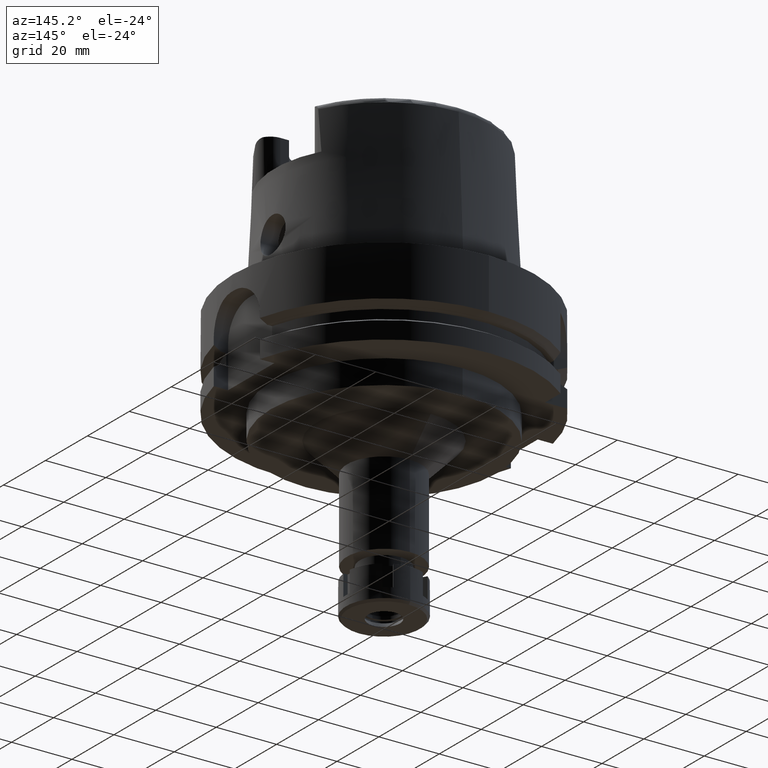
[diagram: clean part render]
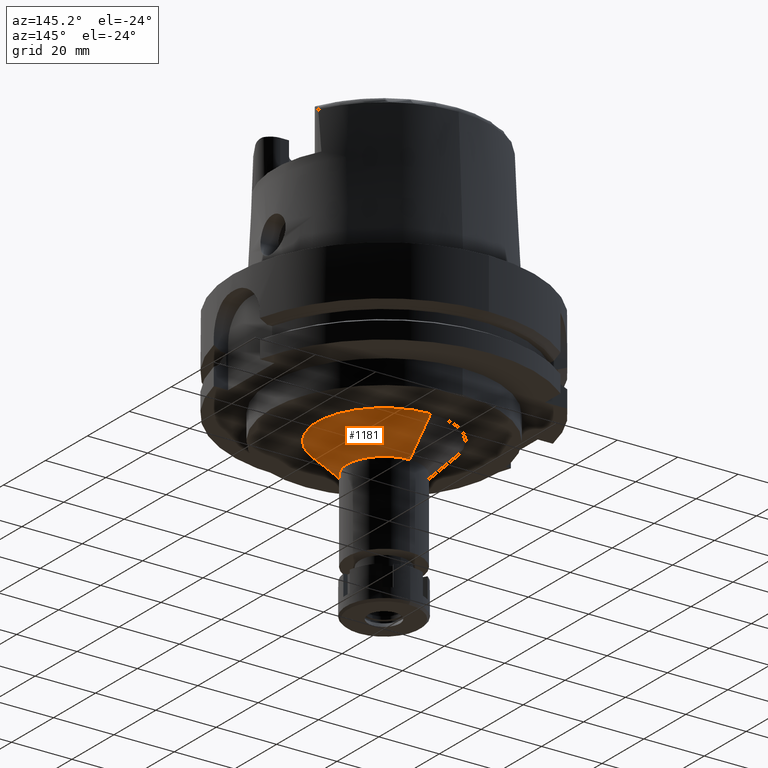
[diagram: same view with one face highlighted and labeled with its STEP entity id]
A machine part, auxiliary view. The second image highlights one B-rep face of the part: STEP entity #1181.
In plain terms, the highlighted conical surface has half-angle 45 deg.
Its self-contained STEP definition (entity closure, byte-faithful):
#38 = CONICAL_SURFACE ( 'NONE', #4300, 17.25000000000000000, 0.7853981633972997312 ) ;
#956 = EDGE_CURVE ( 'NONE', #4631, #5289, #5639, .T. ) ;
#1181 = ADVANCED_FACE ( 'NONE', ( #1250 ), #38, .T. ) ;
#1250 = FACE_OUTER_BOUND ( 'NONE', #3326, .T. ) ;
#1578 = CARTESIAN_POINT ( 'NONE',  ( 0.0000000000000000000, -22.25000000000000000, -37.00000000000000000 ) ) ;
#1801 = VERTEX_POINT ( 'NONE', #3789 ) ;
#1815 = DIRECTION ( 'NONE',  ( 0.0000000000000000000, 0.0000000000000000000, -1.000000000000000000 ) ) ;
#1888 = AXIS2_PLACEMENT_3D ( 'NONE', #3269, #1815, #5702 ) ;
#1938 = CARTESIAN_POINT ( 'NONE',  ( 0.0000000000000000000, 0.0000000000000000000, -47.00000000000000000 ) ) ;
#2178 = VERTEX_POINT ( 'NONE', #5275 ) ;
#2553 = ORIENTED_EDGE ( 'NONE', *, *, #3212, .T. ) ;
#2639 = DIRECTION ( 'NONE',  ( 0.0000000000000000000, 0.0000000000000000000, 1.000000000000000000 ) ) ;
#2924 = DIRECTION ( 'NONE',  ( 0.0000000000000000000, 1.000000000000000000, 0.0000000000000000000 ) ) ;
#2979 = DIRECTION ( 'NONE',  ( 0.0000000000000000000, 0.0000000000000000000, -1.000000000000000000 ) ) ;
#3212 = EDGE_CURVE ( 'NONE', #2178, #1801, #4382, .T. ) ;
#3269 = CARTESIAN_POINT ( 'NONE',  ( 0.0000000000000000000, 0.0000000000000000000, -37.00000000000000000 ) ) ;
#3326 = EDGE_LOOP ( 'NONE', ( #4678, #2553, #3625, #4744 ) ) ;
#3465 = VECTOR ( 'NONE', #3532, 1000.000000000000114 ) ;
#3532 = DIRECTION ( 'NONE',  ( 0.0000000000000000000, 0.7071067811865474617, -0.7071067811865474617 ) ) ;
#3625 = ORIENTED_EDGE ( 'NONE', *, *, #4260, .F. ) ;
#3678 = CARTESIAN_POINT ( 'NONE',  ( 0.0000000000000000000, 12.25000000000000000, -47.00000000000000000 ) ) ;
#3789 = CARTESIAN_POINT ( 'NONE',  ( 0.0000000000000000000, -12.25000000000000000, -47.00000000000000000 ) ) ;
#4066 = CIRCLE ( 'NONE', #1888, 22.25000000000000000 ) ;
#4112 = EDGE_CURVE ( 'NONE', #4631, #2178, #4066, .T. ) ;
#4260 = EDGE_CURVE ( 'NONE', #5289, #1801, #4571, .T. ) ;
#4300 = AXIS2_PLACEMENT_3D ( 'NONE', #5008, #2639, #4542 ) ;
#4382 = LINE ( 'NONE', #1578, #3465 ) ;
#4542 = DIRECTION ( 'NONE',  ( 0.0000000000000000000, 1.000000000000000000, 0.0000000000000000000 ) ) ;
#4571 = CIRCLE ( 'NONE', #5962, 12.25000000000000000 ) ;
#4631 = VERTEX_POINT ( 'NONE', #5632 ) ;
#4678 = ORIENTED_EDGE ( 'NONE', *, *, #4112, .T. ) ;
#4744 = ORIENTED_EDGE ( 'NONE', *, *, #956, .F. ) ;
#4768 = DIRECTION ( 'NONE',  ( 0.0000000000000000000, -0.7071067811865474617, -0.7071067811865474617 ) ) ;
#5008 = CARTESIAN_POINT ( 'NONE',  ( 0.0000000000000000000, 0.0000000000000000000, -42.00000000000000000 ) ) ;
#5275 = CARTESIAN_POINT ( 'NONE',  ( 0.0000000000000000000, -22.25000000000000000, -37.00000000000000000 ) ) ;
#5289 = VERTEX_POINT ( 'NONE', #3678 ) ;
#5387 = VECTOR ( 'NONE', #4768, 1000.000000000000114 ) ;
#5632 = CARTESIAN_POINT ( 'NONE',  ( 0.0000000000000000000, 22.25000000000000000, -37.00000000000000000 ) ) ;
#5639 = LINE ( 'NONE', #5674, #5387 ) ;
#5674 = CARTESIAN_POINT ( 'NONE',  ( 0.0000000000000000000, 22.25000000000000000, -37.00000000000000000 ) ) ;
#5702 = DIRECTION ( 'NONE',  ( 0.0000000000000000000, 1.000000000000000000, 0.0000000000000000000 ) ) ;
#5962 = AXIS2_PLACEMENT_3D ( 'NONE', #1938, #2979, #2924 ) ;